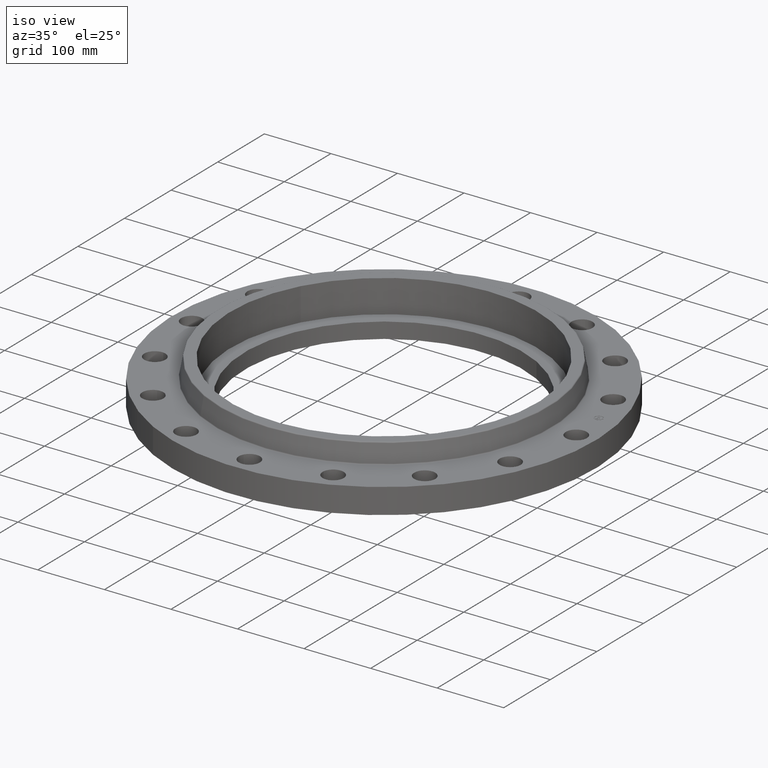
[diagram: clean part render]
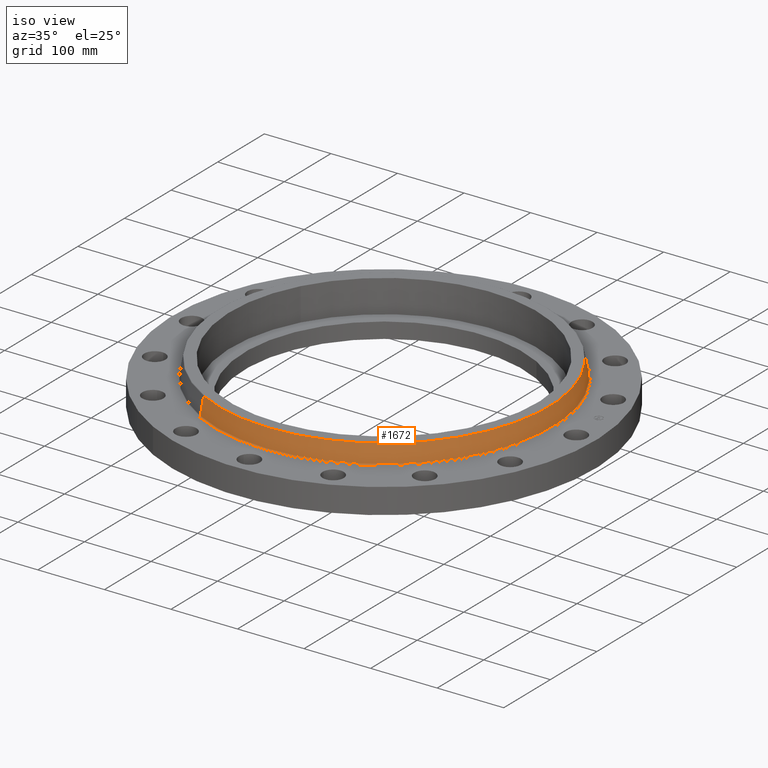
[diagram: same view with one face highlighted and labeled with its STEP entity id]
A machine part, iso view. The second image highlights one B-rep face of the part: STEP entity #1672.
In plain terms, the highlighted conical surface has half-angle 10 deg.
Its self-contained STEP definition (entity closure, byte-faithful):
#1565=AXIS2_PLACEMENT_3D('Circle Axis2P3D',#1563,#1564,$) ;
#1645=AXIS2_PLACEMENT_3D('Cone Axis2P3D',#1642,#1643,#1644) ;
#1656=AXIS2_PLACEMENT_3D('Circle Axis2P3D',#1654,#1655,$) ;
#1560=CARTESIAN_POINT('Vertex',(4.76129848206,8.71549841081,1.54958110935)) ;
#1563=CARTESIAN_POINT('Axis2P3D Location',(0.,0.,1.54958110935)) ;
#1567=CARTESIAN_POINT('Vertex',(-4.76129848206,-8.71549841081,1.54958110935)) ;
#1642=CARTESIAN_POINT('Axis2P3D Location',(0.,0.,2.57041889067)) ;
#1647=CARTESIAN_POINT('Line Origine',(4.71814988543,8.63651543449,2.06000000001)) ;
#1651=CARTESIAN_POINT('Vertex',(4.67500128881,8.55753245816,2.57041889067)) ;
#1654=CARTESIAN_POINT('Axis2P3D Location',(0.,0.,2.57041889067)) ;
#1658=CARTESIAN_POINT('Vertex',(-4.67500128881,-8.55753245816,2.57041889067)) ;
#1661=CARTESIAN_POINT('Line Origine',(-4.71814988543,-8.63651543449,2.06000000001)) ;
#1564=DIRECTION('Axis2P3D Direction',(0.,0.,-0.0393700787402)) ;
#1643=DIRECTION('Axis2P3D Direction',(0.,0.,-0.0393700787402)) ;
#1644=DIRECTION('Axis2P3D XDirection',(-0.0188750212049,-0.0345504945626,0.)) ;
#1648=DIRECTION('Vector Direction',(0.00327761303565,0.00599963041829,-0.03877195878)) ;
#1655=DIRECTION('Axis2P3D Direction',(0.,0.,-0.0393700787402)) ;
#1662=DIRECTION('Vector Direction',(-0.00327761303565,-0.00599963041829,-0.03877195878)) ;
#1649=VECTOR('Line Direction',#1648,0.0393700787402) ;
#1663=VECTOR('Line Direction',#1662,0.0393700787402) ;
#1667=ORIENTED_EDGE('',*,*,#1569,.F.) ;
#1668=ORIENTED_EDGE('',*,*,#1653,.T.) ;
#1669=ORIENTED_EDGE('',*,*,#1660,.T.) ;
#1670=ORIENTED_EDGE('',*,*,#1665,.F.) ;
#1672=ADVANCED_FACE('PartBody',(#1671),#1646,.T.) ;
#1566=CIRCLE('generated circle',#1565,9.93125751273) ;
#1657=CIRCLE('generated circle',#1656,9.75125626896) ;
#1646=CONICAL_SURFACE('Cone',#1645,9.75125626896,0.174532925199) ;
#1569=EDGE_CURVE('',#1561,#1568,#1566,.T.) ;
#1653=EDGE_CURVE('',#1561,#1652,#1650,.F.) ;
#1660=EDGE_CURVE('',#1652,#1659,#1657,.T.) ;
#1665=EDGE_CURVE('',#1568,#1659,#1664,.F.) ;
#1666=EDGE_LOOP('',(#1667,#1668,#1669,#1670)) ;
#1671=FACE_OUTER_BOUND('',#1666,.T.) ;
#1650=LINE('Line',#1647,#1649) ;
#1664=LINE('Line',#1661,#1663) ;
#1561=VERTEX_POINT('',#1560) ;
#1568=VERTEX_POINT('',#1567) ;
#1652=VERTEX_POINT('',#1651) ;
#1659=VERTEX_POINT('',#1658) ;